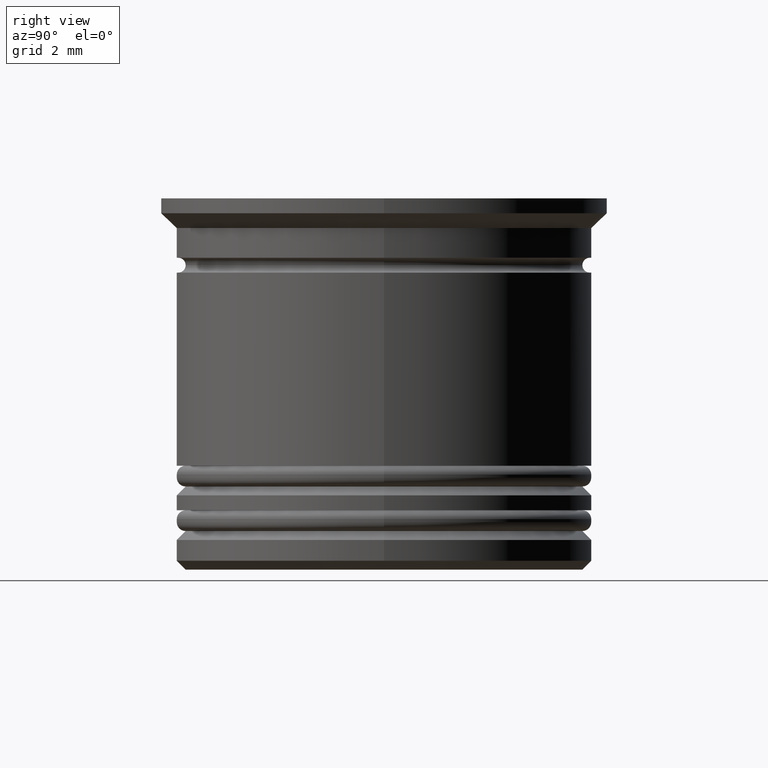
[diagram: clean part render]
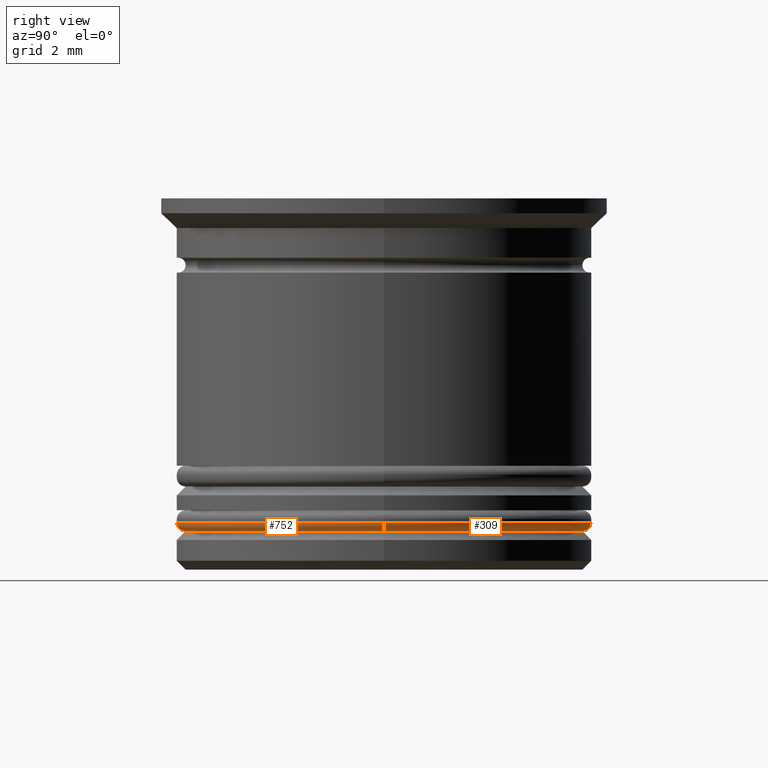
[diagram: same view with one multi-face feature highlighted, each face labeled with its STEP entity id]
A machine part, right view. The highlighted faces form ONE feature: a constant-radius fillet chain: 2 tangent blend faces with common blend radius 0.3 mm. The faces share edges in the B-rep.
Their STEP definitions:
[1] entity #309 (Torus):
#253 = CIRCLE ( 'NONE', #478, 0.2999999999999999334 ) ;
#278 = EDGE_CURVE ( 'NONE', #1422, #837, #253, .T. ) ;
#280 = DIRECTION ( 'NONE',  ( 1.224646799147353207E-16, 1.000000000000000000, -0.000000000000000000 ) ) ;
#309 = ADVANCED_FACE ( 'NONE', ( #1269 ), #1914, .T. ) ;
#314 = ORIENTED_EDGE ( 'NONE', *, *, #278, .F. ) ;
#319 = AXIS2_PLACEMENT_3D ( 'NONE', #1695, #929, #780 ) ;
#322 = VERTEX_POINT ( 'NONE', #457 ) ;
#358 = ORIENTED_EDGE ( 'NONE', *, *, #385, .F. ) ;
#385 = EDGE_CURVE ( 'NONE', #837, #1888, #644, .T. ) ;
#396 = ORIENTED_EDGE ( 'NONE', *, *, #533, .T. ) ;
#457 = CARTESIAN_POINT ( 'NONE',  ( -6.700000000000002842, 8.388830574159372834E-16, -11.20000000000000462 ) ) ;
#478 = AXIS2_PLACEMENT_3D ( 'NONE', #902, #1370, #525 ) ;
#525 = DIRECTION ( 'NONE',  ( 0.000000000000000000, 0.000000000000000000, -1.000000000000000000 ) ) ;
#533 = EDGE_CURVE ( 'NONE', #322, #1888, #1731, .T. ) ;
#644 = CIRCLE ( 'NONE', #319, 7.000000000000002665 ) ;
#703 = CIRCLE ( 'NONE', #993, 6.700000000000002842 ) ;
#780 = DIRECTION ( 'NONE',  ( 1.000000000000000000, 0.000000000000000000, 0.000000000000000000 ) ) ;
#789 = DIRECTION ( 'NONE',  ( 0.000000000000000000, 0.000000000000000000, 1.000000000000000000 ) ) ;
#812 = DIRECTION ( 'NONE',  ( -0.000000000000000000, -0.000000000000000000, -1.000000000000000000 ) ) ;
#837 = VERTEX_POINT ( 'NONE', #1162 ) ;
#902 = CARTESIAN_POINT ( 'NONE',  ( 6.700000000000002842, 0.000000000000000000, -10.90000000000000391 ) ) ;
#929 = DIRECTION ( 'NONE',  ( 0.000000000000000000, 0.000000000000000000, 1.000000000000000000 ) ) ;
#937 = DIRECTION ( 'NONE',  ( 1.000000000000000000, 0.000000000000000000, 0.000000000000000000 ) ) ;
#993 = AXIS2_PLACEMENT_3D ( 'NONE', #1860, #812, #937 ) ;
#997 = CARTESIAN_POINT ( 'NONE',  ( 6.700000000000002842, 0.000000000000000000, -11.20000000000000462 ) ) ;
#1162 = CARTESIAN_POINT ( 'NONE',  ( 7.000000000000002665, 0.000000000000000000, -10.90000000000000391 ) ) ;
#1202 = DIRECTION ( 'NONE',  ( -1.000000000000000000, 1.224646799147353207E-16, 0.000000000000000000 ) ) ;
#1230 = AXIS2_PLACEMENT_3D ( 'NONE', #1994, #789, #1232 ) ;
#1232 = DIRECTION ( 'NONE',  ( 1.000000000000000000, 0.000000000000000000, 0.000000000000000000 ) ) ;
#1254 = ORIENTED_EDGE ( 'NONE', *, *, #1455, .F. ) ;
#1269 = FACE_OUTER_BOUND ( 'NONE', #1879, .T. ) ;
#1351 = CARTESIAN_POINT ( 'NONE',  ( -6.700000000000002842, 8.205133554287269520E-16, -10.90000000000000391 ) ) ;
#1370 = DIRECTION ( 'NONE',  ( 0.000000000000000000, -1.000000000000000000, 0.000000000000000000 ) ) ;
#1395 = CARTESIAN_POINT ( 'NONE',  ( -7.000000000000002665, 8.572527594031475162E-16, -10.90000000000000391 ) ) ;
#1422 = VERTEX_POINT ( 'NONE', #997 ) ;
#1455 = EDGE_CURVE ( 'NONE', #322, #1422, #703, .T. ) ;
#1673 = AXIS2_PLACEMENT_3D ( 'NONE', #1351, #280, #1202 ) ;
#1695 = CARTESIAN_POINT ( 'NONE',  ( 0.000000000000000000, 0.000000000000000000, -10.90000000000000391 ) ) ;
#1731 = CIRCLE ( 'NONE', #1673, 0.2999999999999999334 ) ;
#1860 = CARTESIAN_POINT ( 'NONE',  ( 0.000000000000000000, 0.000000000000000000, -11.20000000000000462 ) ) ;
#1879 = EDGE_LOOP ( 'NONE', ( #1254, #396, #358, #314 ) ) ;
#1888 = VERTEX_POINT ( 'NONE', #1395 ) ;
#1914 = TOROIDAL_SURFACE ( 'NONE', #1230, 6.700000000000002842, 0.2999999999999999889 ) ;
#1994 = CARTESIAN_POINT ( 'NONE',  ( 0.000000000000000000, 0.000000000000000000, -10.90000000000000391 ) ) ;
[2] entity #752 (Torus):
#27 = EDGE_CURVE ( 'NONE', #1888, #837, #1541, .T. ) ;
#41 = CARTESIAN_POINT ( 'NONE',  ( 0.000000000000000000, 0.000000000000000000, -10.90000000000000391 ) ) ;
#253 = CIRCLE ( 'NONE', #478, 0.2999999999999999334 ) ;
#278 = EDGE_CURVE ( 'NONE', #1422, #837, #253, .T. ) ;
#280 = DIRECTION ( 'NONE',  ( 1.224646799147353207E-16, 1.000000000000000000, -0.000000000000000000 ) ) ;
#322 = VERTEX_POINT ( 'NONE', #457 ) ;
#428 = DIRECTION ( 'NONE',  ( 0.000000000000000000, 0.000000000000000000, 1.000000000000000000 ) ) ;
#457 = CARTESIAN_POINT ( 'NONE',  ( -6.700000000000002842, 8.388830574159372834E-16, -11.20000000000000462 ) ) ;
#471 = EDGE_LOOP ( 'NONE', ( #1003, #1137, #987, #663 ) ) ;
#478 = AXIS2_PLACEMENT_3D ( 'NONE', #902, #1370, #525 ) ;
#525 = DIRECTION ( 'NONE',  ( 0.000000000000000000, 0.000000000000000000, -1.000000000000000000 ) ) ;
#533 = EDGE_CURVE ( 'NONE', #322, #1888, #1731, .T. ) ;
#623 = EDGE_CURVE ( 'NONE', #1422, #322, #1855, .T. ) ;
#663 = ORIENTED_EDGE ( 'NONE', *, *, #27, .F. ) ;
#675 = AXIS2_PLACEMENT_3D ( 'NONE', #1616, #1770, #1167 ) ;
#752 = ADVANCED_FACE ( 'NONE', ( #1971 ), #1034, .T. ) ;
#837 = VERTEX_POINT ( 'NONE', #1162 ) ;
#902 = CARTESIAN_POINT ( 'NONE',  ( 6.700000000000002842, 0.000000000000000000, -10.90000000000000391 ) ) ;
#987 = ORIENTED_EDGE ( 'NONE', *, *, #278, .T. ) ;
#997 = CARTESIAN_POINT ( 'NONE',  ( 6.700000000000002842, 0.000000000000000000, -11.20000000000000462 ) ) ;
#1003 = ORIENTED_EDGE ( 'NONE', *, *, #533, .F. ) ;
#1034 = TOROIDAL_SURFACE ( 'NONE', #1291, 6.700000000000002842, 0.2999999999999999889 ) ;
#1137 = ORIENTED_EDGE ( 'NONE', *, *, #623, .F. ) ;
#1162 = CARTESIAN_POINT ( 'NONE',  ( 7.000000000000002665, 0.000000000000000000, -10.90000000000000391 ) ) ;
#1167 = DIRECTION ( 'NONE',  ( 1.000000000000000000, 0.000000000000000000, 0.000000000000000000 ) ) ;
#1196 = CARTESIAN_POINT ( 'NONE',  ( 0.000000000000000000, 0.000000000000000000, -10.90000000000000391 ) ) ;
#1198 = DIRECTION ( 'NONE',  ( 0.000000000000000000, 0.000000000000000000, 1.000000000000000000 ) ) ;
#1202 = DIRECTION ( 'NONE',  ( -1.000000000000000000, 1.224646799147353207E-16, 0.000000000000000000 ) ) ;
#1215 = DIRECTION ( 'NONE',  ( 1.000000000000000000, 0.000000000000000000, 0.000000000000000000 ) ) ;
#1291 = AXIS2_PLACEMENT_3D ( 'NONE', #1196, #428, #1215 ) ;
#1346 = DIRECTION ( 'NONE',  ( 1.000000000000000000, 0.000000000000000000, 0.000000000000000000 ) ) ;
#1351 = CARTESIAN_POINT ( 'NONE',  ( -6.700000000000002842, 8.205133554287269520E-16, -10.90000000000000391 ) ) ;
#1370 = DIRECTION ( 'NONE',  ( 0.000000000000000000, -1.000000000000000000, 0.000000000000000000 ) ) ;
#1395 = CARTESIAN_POINT ( 'NONE',  ( -7.000000000000002665, 8.572527594031475162E-16, -10.90000000000000391 ) ) ;
#1422 = VERTEX_POINT ( 'NONE', #997 ) ;
#1541 = CIRCLE ( 'NONE', #1702, 7.000000000000002665 ) ;
#1616 = CARTESIAN_POINT ( 'NONE',  ( 0.000000000000000000, 0.000000000000000000, -11.20000000000000462 ) ) ;
#1673 = AXIS2_PLACEMENT_3D ( 'NONE', #1351, #280, #1202 ) ;
#1702 = AXIS2_PLACEMENT_3D ( 'NONE', #41, #1198, #1346 ) ;
#1731 = CIRCLE ( 'NONE', #1673, 0.2999999999999999334 ) ;
#1770 = DIRECTION ( 'NONE',  ( -0.000000000000000000, -0.000000000000000000, -1.000000000000000000 ) ) ;
#1855 = CIRCLE ( 'NONE', #675, 6.700000000000002842 ) ;
#1888 = VERTEX_POINT ( 'NONE', #1395 ) ;
#1971 = FACE_OUTER_BOUND ( 'NONE', #471, .T. ) ;